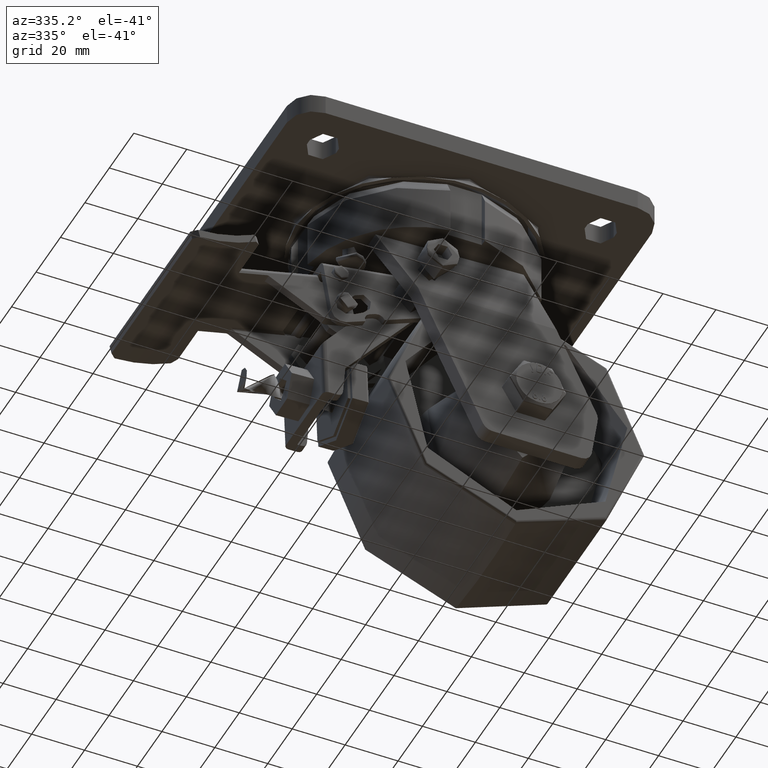
[diagram: clean part render]
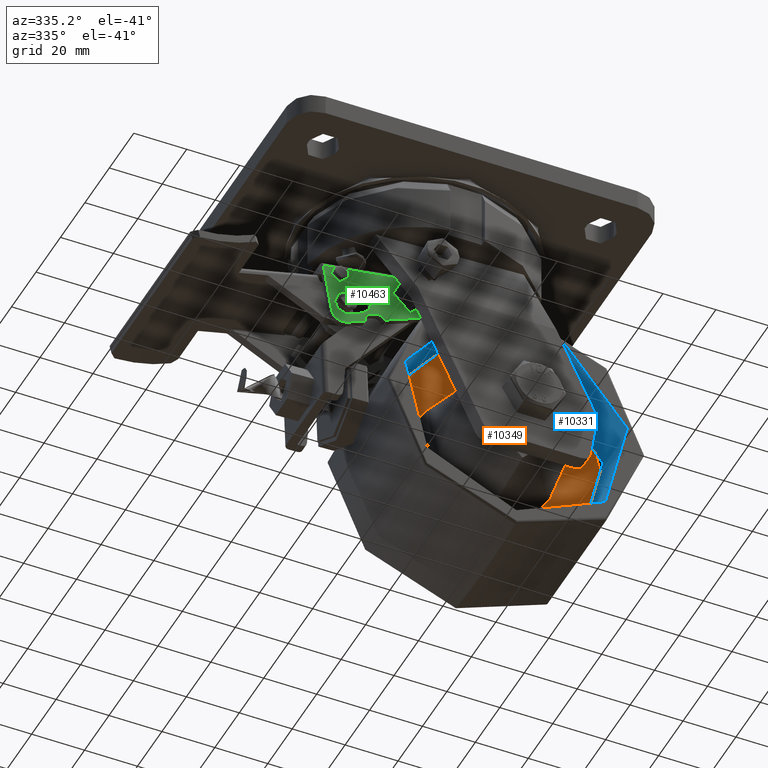
[diagram: same view with three faces highlighted in distinct colors, each labeled with its STEP entity id]
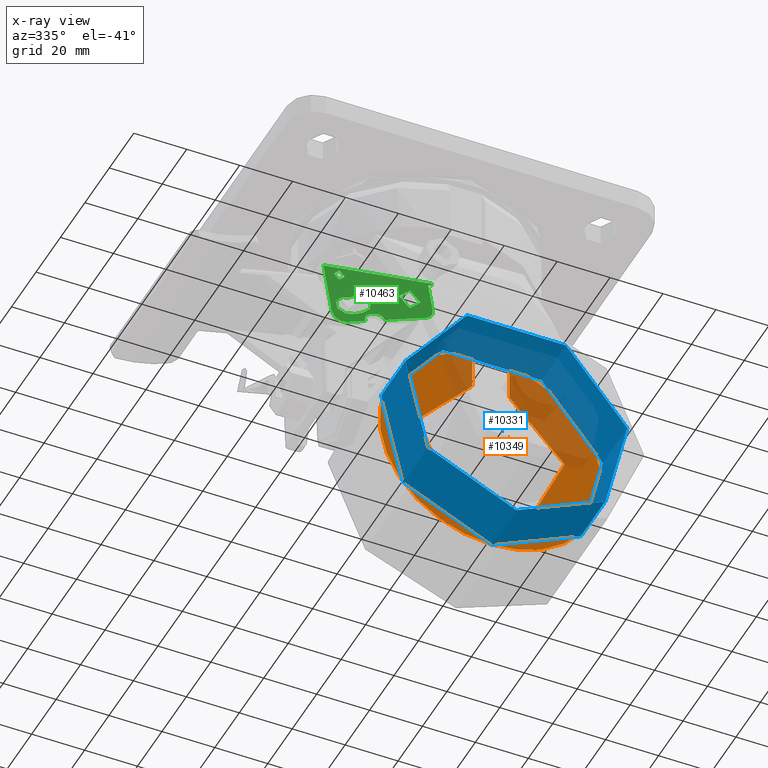
[diagram: x-ray of the same camera — body ghosted, the three highlighted faces saturated]
A machine part, auxiliary view with three faces highlighted in distinct colors.
The next image is the same camera in x-ray (body ghosted, the three faces saturated) — at least one of them is partly hidden behind the body in this view.
Their STEP definitions:

[orange] entity #10349 — the highlighted planar face has unit normal (0, -1, 0).
#290=FACE_BOUND('',#1927,.T.);
#394=PLANE('',#11286);
#1286=FACE_OUTER_BOUND('',#1926,.T.);
#1926=EDGE_LOOP('',(#7317));
#1927=EDGE_LOOP('',(#7318,#7319,#7320,#7321));
#2645=LINE('',#15510,#3443);
#2646=LINE('',#15512,#3444);
#2647=LINE('',#15513,#3445);
#3443=VECTOR('',#12458,1000.);
#3444=VECTOR('',#12459,1000.);
#3445=VECTOR('',#12460,1000.);
#4266=CIRCLE('',#11239,28.2488091726684);
#4269=CIRCLE('',#11243,42.);
#4699=VERTEX_POINT('',#15368);
#4700=VERTEX_POINT('',#15379);
#4702=VERTEX_POINT('',#15394);
#4724=VERTEX_POINT('',#15509);
#4725=VERTEX_POINT('',#15511);
#5700=EDGE_CURVE('',#4700,#4699,#4266,.T.);
#5704=EDGE_CURVE('',#4702,#4702,#4269,.T.);
#5739=EDGE_CURVE('',#4724,#4700,#2645,.T.);
#5740=EDGE_CURVE('',#4699,#4725,#2646,.T.);
#5741=EDGE_CURVE('',#4725,#4724,#2647,.T.);
#7317=ORIENTED_EDGE('',*,*,#5704,.F.);
#7318=ORIENTED_EDGE('',*,*,#5739,.T.);
#7319=ORIENTED_EDGE('',*,*,#5700,.T.);
#7320=ORIENTED_EDGE('',*,*,#5740,.T.);
#7321=ORIENTED_EDGE('',*,*,#5741,.T.);
#10349=ADVANCED_FACE('',(#1286,#290),#394,.T.);
#11239=AXIS2_PLACEMENT_3D('',#15380,#12355,#12356);
#11243=AXIS2_PLACEMENT_3D('',#15396,#12363,#12364);
#11286=AXIS2_PLACEMENT_3D('',#15508,#12456,#12457);
#12355=DIRECTION('center_axis',(0.,1.,0.));
#12356=DIRECTION('ref_axis',(0.,0.,1.));
#12363=DIRECTION('center_axis',(0.,1.,0.));
#12364=DIRECTION('ref_axis',(0.,0.,1.));
#12456=DIRECTION('center_axis',(0.,-1.,1.26150781976562E-16));
#12457=DIRECTION('ref_axis',(0.,-1.26150781976562E-16,-1.));
#12458=DIRECTION('',(0.,-1.26150781976562E-16,-1.));
#12459=DIRECTION('',(0.,1.26150781976562E-16,1.));
#12460=DIRECTION('',(1.,0.,0.));
#15368=CARTESIAN_POINT('',(-7.,-3.99999999999999,27.3677770320104));
#15379=CARTESIAN_POINT('',(7.,-3.99999999999999,27.3677770320104));
#15380=CARTESIAN_POINT('Origin',(0.,-3.99999999999999,0.));
#15394=CARTESIAN_POINT('',(-5.14351655641888E-15,-3.99999999999999,-42.));
#15396=CARTESIAN_POINT('Origin',(0.,-3.99999999999999,0.));
#15508=CARTESIAN_POINT('Origin',(0.,-3.99999999999999,35.1244045863342));
#15509=CARTESIAN_POINT('',(7.,-3.99999999999998,41.));
#15510=CARTESIAN_POINT('',(7.,-3.99999999999999,17.5622022931671));
#15511=CARTESIAN_POINT('',(-7.,-3.99999999999998,41.));
#15512=CARTESIAN_POINT('',(-7.,-3.99999999999999,17.5622022931671));
#15513=CARTESIAN_POINT('',(0.,-3.99999999999999,41.));

[blue] entity #10331 — the highlighted cylindrical surface (bore or boss wall) has radius 43 mm, axis along (0, 1, 0).
#699=CYLINDRICAL_SURFACE('',#11244,43.);
#1268=FACE_OUTER_BOUND('',#1902,.T.);
#1902=EDGE_LOOP('',(#7252,#7253,#7254,#7255));
#2638=LINE('',#15400,#3436);
#3436=VECTOR('',#12369,43.);
#4267=CIRCLE('',#11241,43.);
#4270=CIRCLE('',#11245,43.);
#4701=VERTEX_POINT('',#15392);
#4703=VERTEX_POINT('',#15398);
#5702=EDGE_CURVE('',#4701,#4701,#4267,.T.);
#5705=EDGE_CURVE('',#4703,#4703,#4270,.T.);
#5706=EDGE_CURVE('',#4703,#4701,#2638,.T.);
#7252=ORIENTED_EDGE('',*,*,#5705,.F.);
#7253=ORIENTED_EDGE('',*,*,#5706,.T.);
#7254=ORIENTED_EDGE('',*,*,#5702,.T.);
#7255=ORIENTED_EDGE('',*,*,#5706,.F.);
#10331=ADVANCED_FACE('',(#1268),#699,.F.);
#11241=AXIS2_PLACEMENT_3D('',#15393,#12359,#12360);
#11244=AXIS2_PLACEMENT_3D('',#15397,#12365,#12366);
#11245=AXIS2_PLACEMENT_3D('',#15399,#12367,#12368);
#12359=DIRECTION('center_axis',(0.,1.,0.));
#12360=DIRECTION('ref_axis',(0.,0.,1.));
#12365=DIRECTION('center_axis',(0.,1.,0.));
#12366=DIRECTION('ref_axis',(0.,0.,1.));
#12367=DIRECTION('center_axis',(0.,1.,0.));
#12368=DIRECTION('ref_axis',(0.,0.,1.));
#12369=DIRECTION('',(0.,1.,0.));
#15392=CARTESIAN_POINT('',(-5.26598123633362E-15,-4.99999999999999,-43.));
#15393=CARTESIAN_POINT('Origin',(0.,-4.99999999999999,0.));
#15397=CARTESIAN_POINT('Origin',(0.,-15.,0.));
#15398=CARTESIAN_POINT('',(5.26598123633362E-15,-25.,-43.));
#15399=CARTESIAN_POINT('Origin',(0.,-25.,0.));
#15400=CARTESIAN_POINT('',(-5.26598123633362E-15,-15.,-43.));

[green] entity #10463 — the highlighted planar face has unit normal (0, 1, 0).
#311=FACE_BOUND('',#2062,.T.);
#312=FACE_BOUND('',#2063,.T.);
#313=FACE_BOUND('',#2064,.T.);
#439=PLANE('',#11496);
#1400=FACE_OUTER_BOUND('',#2061,.T.);
#2061=EDGE_LOOP('',(#7847,#7848,#7849,#7850,#7851,#7852,#7853,#7854,#7855,
#7856,#7857,#7858));
#2062=EDGE_LOOP('',(#7859));
#2063=EDGE_LOOP('',(#7860));
#2064=EDGE_LOOP('',(#7861,#7862,#7863,#7864));
#2768=LINE('',#19368,#3566);
#2780=LINE('',#19434,#3578);
#2781=LINE('',#19438,#3579);
#2782=LINE('',#19442,#3580);
#2783=LINE('',#19446,#3581);
#2784=LINE('',#19450,#3582);
#2785=LINE('',#19452,#3583);
#2786=LINE('',#19453,#3584);
#3566=VECTOR('',#12937,1000.);
#3578=VECTOR('',#13013,1000.);
#3579=VECTOR('',#13016,1000.);
#3580=VECTOR('',#13019,1000.);
#3581=VECTOR('',#13022,1000.);
#3582=VECTOR('',#13025,1000.);
#3583=VECTOR('',#13026,1000.);
#3584=VECTOR('',#13027,1000.);
#4360=CIRCLE('',#11458,4.00000000000004);
#4365=CIRCLE('',#11468,3.5);
#4368=CIRCLE('',#11473,3.5);
#4374=CIRCLE('',#11482,2.);
#4378=CIRCLE('',#11488,13.6670018744684);
#4382=CIRCLE('',#11494,6.66700187446839);
#4384=CIRCLE('',#11497,4.00000000000005);
#4385=CIRCLE('',#11498,2.75);
#4386=CIRCLE('',#11499,2.75);
#4387=CIRCLE('',#11500,4.00000000000005);
#4875=VERTEX_POINT('',#19349);
#4882=VERTEX_POINT('',#19365);
#4883=VERTEX_POINT('',#19367);
#4887=VERTEX_POINT('',#19376);
#4888=VERTEX_POINT('',#19378);
#4893=VERTEX_POINT('',#19391);
#4894=VERTEX_POINT('',#19392);
#4903=VERTEX_POINT('',#19415);
#4905=VERTEX_POINT('',#19433);
#4906=VERTEX_POINT('',#19435);
#4907=VERTEX_POINT('',#19437);
#4908=VERTEX_POINT('',#19439);
#4909=VERTEX_POINT('',#19441);
#4910=VERTEX_POINT('',#19443);
#4911=VERTEX_POINT('',#19445);
#4912=VERTEX_POINT('',#19447);
#4913=VERTEX_POINT('',#19449);
#4914=VERTEX_POINT('',#19451);
#5973=EDGE_CURVE('',#4875,#4875,#4360,.T.);
#5981=EDGE_CURVE('',#4882,#4883,#2768,.T.);
#5986=EDGE_CURVE('',#4888,#4887,#4365,.T.);
#5992=EDGE_CURVE('',#4893,#4894,#4368,.T.);
#6003=EDGE_CURVE('',#4903,#4903,#4374,.T.);
#6008=EDGE_CURVE('',#4887,#4893,#4378,.T.);
#6012=EDGE_CURVE('',#4894,#4888,#4382,.T.);
#6014=EDGE_CURVE('',#4905,#4882,#2780,.T.);
#6015=EDGE_CURVE('',#4906,#4905,#4384,.T.);
#6016=EDGE_CURVE('',#4907,#4906,#2781,.T.);
#6017=EDGE_CURVE('',#4908,#4907,#4385,.T.);
#6018=EDGE_CURVE('',#4909,#4908,#2782,.T.);
#6019=EDGE_CURVE('',#4910,#4909,#4386,.T.);
#6020=EDGE_CURVE('',#4911,#4910,#2783,.T.);
#6021=EDGE_CURVE('',#4912,#4911,#4387,.T.);
#6022=EDGE_CURVE('',#4913,#4912,#2784,.T.);
#6023=EDGE_CURVE('',#4914,#4913,#2785,.T.);
#6024=EDGE_CURVE('',#4914,#4883,#2786,.F.);
#7847=ORIENTED_EDGE('',*,*,#5981,.F.);
#7848=ORIENTED_EDGE('',*,*,#6014,.F.);
#7849=ORIENTED_EDGE('',*,*,#6015,.F.);
#7850=ORIENTED_EDGE('',*,*,#6016,.F.);
#7851=ORIENTED_EDGE('',*,*,#6017,.F.);
#7852=ORIENTED_EDGE('',*,*,#6018,.F.);
#7853=ORIENTED_EDGE('',*,*,#6019,.F.);
#7854=ORIENTED_EDGE('',*,*,#6020,.F.);
#7855=ORIENTED_EDGE('',*,*,#6021,.F.);
#7856=ORIENTED_EDGE('',*,*,#6022,.F.);
#7857=ORIENTED_EDGE('',*,*,#6023,.F.);
#7858=ORIENTED_EDGE('',*,*,#6024,.T.);
#7859=ORIENTED_EDGE('',*,*,#5973,.F.);
#7860=ORIENTED_EDGE('',*,*,#6003,.T.);
#7861=ORIENTED_EDGE('',*,*,#6012,.T.);
#7862=ORIENTED_EDGE('',*,*,#5986,.T.);
#7863=ORIENTED_EDGE('',*,*,#6008,.T.);
#7864=ORIENTED_EDGE('',*,*,#5992,.T.);
#10463=ADVANCED_FACE('',(#1400,#311,#312,#313),#439,.F.);
#11458=AXIS2_PLACEMENT_3D('',#19350,#12920,#12921);
#11468=AXIS2_PLACEMENT_3D('',#19379,#12946,#12947);
#11473=AXIS2_PLACEMENT_3D('',#19393,#12959,#12960);
#11482=AXIS2_PLACEMENT_3D('',#19416,#12982,#12983);
#11488=AXIS2_PLACEMENT_3D('',#19424,#12995,#12996);
#11494=AXIS2_PLACEMENT_3D('',#19430,#13007,#13008);
#11496=AXIS2_PLACEMENT_3D('',#19432,#13011,#13012);
#11497=AXIS2_PLACEMENT_3D('',#19436,#13014,#13015);
#11498=AXIS2_PLACEMENT_3D('',#19440,#13017,#13018);
#11499=AXIS2_PLACEMENT_3D('',#19444,#13020,#13021);
#11500=AXIS2_PLACEMENT_3D('',#19448,#13023,#13024);
#12920=DIRECTION('center_axis',(0.,-1.,0.));
#12921=DIRECTION('ref_axis',(-1.,0.,0.));
#12937=DIRECTION('',(0.987330371276699,0.,0.158678095383755));
#12946=DIRECTION('center_axis',(0.,1.,0.));
#12947=DIRECTION('ref_axis',(-1.,0.,0.));
#12959=DIRECTION('center_axis',(0.,1.,0.));
#12960=DIRECTION('ref_axis',(-1.,0.,0.));
#12982=DIRECTION('center_axis',(0.,1.,0.));
#12983=DIRECTION('ref_axis',(1.,0.,0.));
#12995=DIRECTION('center_axis',(0.,1.,0.));
#12996=DIRECTION('ref_axis',(0.135969124769551,0.,-0.990713075067349));
#13007=DIRECTION('center_axis',(0.,-1.,0.));
#13008=DIRECTION('ref_axis',(0.135969124769551,0.,-0.990713075067349));
#13011=DIRECTION('center_axis',(0.,1.,0.));
#13012=DIRECTION('ref_axis',(0.,0.,1.));
#13013=DIRECTION('',(-0.158678095383755,0.,0.987330371276699));
#13014=DIRECTION('center_axis',(0.,1.,0.));
#13015=DIRECTION('ref_axis',(0.393403152888844,0.,-0.919366063816322));
#13016=DIRECTION('',(-0.91936606381632,0.,-0.393403152888847));
#13017=DIRECTION('center_axis',(0.,-1.,0.));
#13018=DIRECTION('ref_axis',(-0.393403152888846,0.,0.919366063816321));
#13019=DIRECTION('',(-0.919366063816321,0.,-0.393403152888846));
#13020=DIRECTION('center_axis',(0.,-1.,0.));
#13021=DIRECTION('ref_axis',(-0.393403152888846,0.,0.919366063816321));
#13022=DIRECTION('',(-0.919366063816322,0.,-0.393403152888844));
#13023=DIRECTION('center_axis',(0.,1.,0.));
#13024=DIRECTION('ref_axis',(0.393403152888844,0.,-0.919366063816322));
#13025=DIRECTION('',(0.158678095383755,0.,-0.987330371276699));
#13026=DIRECTION('',(-0.987330371276699,0.,-0.158678095383755));
#13027=DIRECTION('',(0.158678095383755,0.,-0.987330371276699));
#19349=CARTESIAN_POINT('',(-6.99999999999996,-20.,-47.));
#19350=CARTESIAN_POINT('Origin',(-11.,-20.,-47.));
#19365=CARTESIAN_POINT('',(-43.6826438092325,-20.,-43.4746607425534));
#19367=CARTESIAN_POINT('',(-2.70843340124948,-20.,-36.8895197841276));
#19368=CARTESIAN_POINT('',(-4.98572121053805,-20.,-37.2555124677632));
#19376=CARTESIAN_POINT('',(-26.1477804598762,-20.,-56.9590256546196));
#19378=CARTESIAN_POINT('',(-31.7245728261042,-20.,-52.7282589505834));
#19379=CARTESIAN_POINT('Origin',(-28.9361766429902,-20.,-54.8436423026015));
#19391=CARTESIAN_POINT('',(-35.1777804228893,-20.,-62.2388321836966));
#19392=CARTESIAN_POINT('',(-36.1295642962762,-20.,-55.3038406582252));
#19393=CARTESIAN_POINT('Origin',(-35.6536723595827,-20.,-58.7713364209609));
#19415=CARTESIAN_POINT('',(-39.6536723595827,-20.,-45.7713364209609));
#19416=CARTESIAN_POINT('Origin',(-37.6536723595827,-20.,-45.7713364209609));
#19424=CARTESIAN_POINT('Origin',(-37.0360707059846,-20.,-48.6987547296908));
#19430=CARTESIAN_POINT('Origin',(-37.0360707059846,-20.,-48.6987547296908));
#19432=CARTESIAN_POINT('Origin',(0.,-20.,0.));
#19433=CARTESIAN_POINT('',(-40.5286160677614,-20.,-63.09972224504));
#19434=CARTESIAN_POINT('',(-44.,-20.,-41.5));
#19435=CARTESIAN_POINT('',(-35.0056819710992,-20.,-66.1424741187703));
#19436=CARTESIAN_POINT('Origin',(-36.5792945826546,-20.,-62.4650098635049));
#19437=CARTESIAN_POINT('',(-27.7639325950264,-20.,-63.0436790369159));
#19438=CARTESIAN_POINT('',(-33.,-20.,-65.2842288102069));
#19439=CARTESIAN_POINT('',(-26.3175345899759,-20.,-59.4335636909767));
#19440=CARTESIAN_POINT('Origin',(-25.2356759195315,-20.,-61.9618203664715));
#19441=CARTESIAN_POINT('',(-24.0191194304351,-20.,-58.4500558087545));
#19442=CARTESIAN_POINT('',(-26.3175345899759,-20.,-59.4335636909767));
#19443=CARTESIAN_POINT('',(-20.4090040844958,-20.,-59.8964538138051));
#19444=CARTESIAN_POINT('Origin',(-22.9372607599907,-20.,-60.9783124842494));
#19445=CARTESIAN_POINT('',(-4.68053485331495,-20.,-53.1661320962766));
#19446=CARTESIAN_POINT('',(-4.68053485331496,-20.,-53.1661320962766));
#19447=CARTESIAN_POINT('',(-2.3048259797635,-20.,-48.8539554594762));
#19448=CARTESIAN_POINT('Origin',(-6.25414746487035,-20.,-49.4886678410112));
#19449=CARTESIAN_POINT('',(-4.03075086278077,-20.,-38.1148672984799));
#19450=CARTESIAN_POINT('',(-4.03075086278077,-20.,-38.1148672984799));
#19451=CARTESIAN_POINT('',(-2.54975530586572,-20.,-37.8768501554043));
#19452=CARTESIAN_POINT('',(-4.03075086278076,-20.,-38.1148672984799));
#19453=CARTESIAN_POINT('',(-5.48469504763579,-20.,-19.6150028732794));